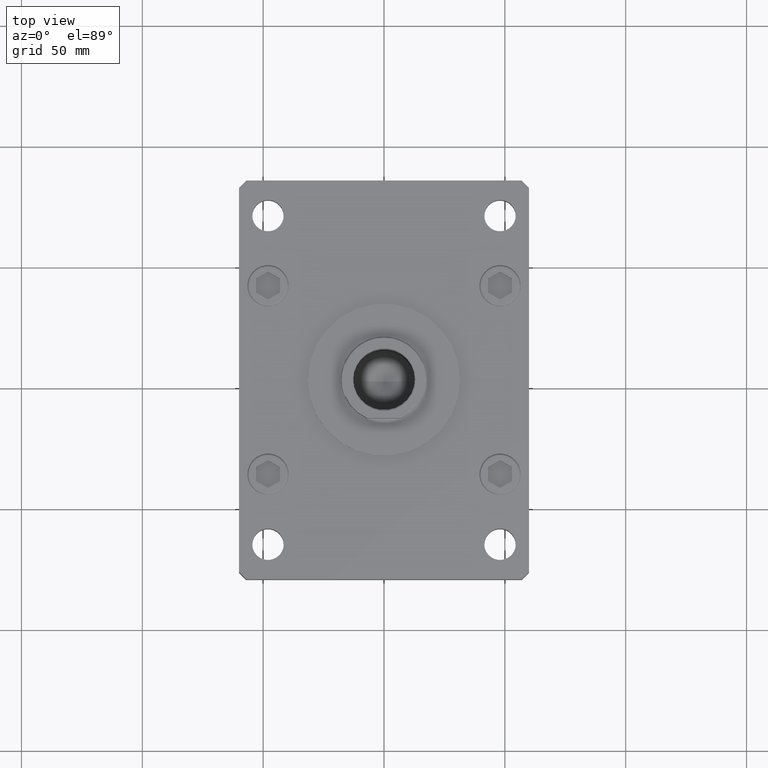
[diagram: clean part render]
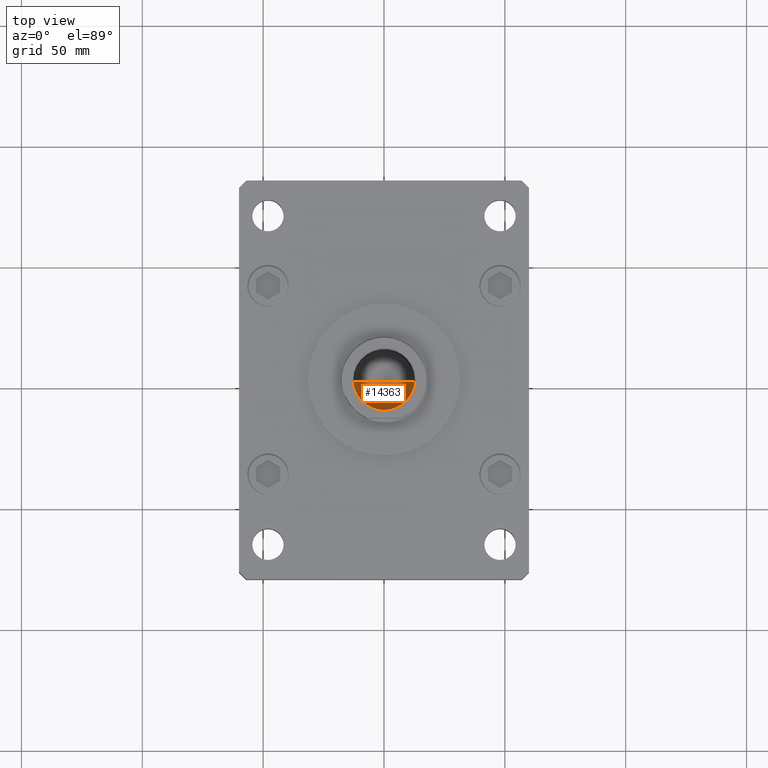
[diagram: same view with one face highlighted and labeled with its STEP entity id]
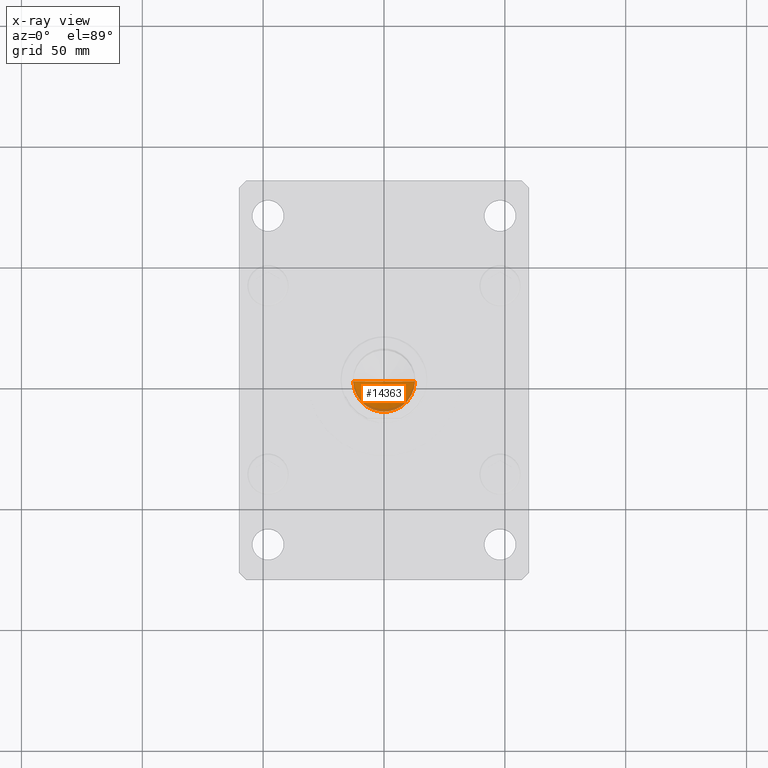
[diagram: x-ray of the same camera — body ghosted, the highlighted face saturated]
A machine part, top view. The second image highlights one B-rep face of the part: STEP entity #14363.
The next image is the same camera in x-ray: the body ghosted, the highlighted face saturated — about 8% of this face is hidden behind the body in this view.
In plain terms, the highlighted conical surface has half-angle 59 deg.
Its self-contained STEP definition (entity closure, byte-faithful):
#622 = VERTEX_POINT ( 'NONE', #44341 ) ;
#1254 = DIRECTION ( 'NONE',  ( 1.000000000000000000, 0.000000000000000000, 0.000000000000000000 ) ) ;
#1391 = CARTESIAN_POINT ( 'NONE',  ( -12.74999999999999112, 1.561424668912874125E-15, 144.2500000000000000 ) ) ;
#1718 = CARTESIAN_POINT ( 'NONE',  ( 12.74999999999999112, 0.000000000000000000, 144.2500000000000000 ) ) ;
#1941 = CARTESIAN_POINT ( 'NONE',  ( 0.000000000000000000, 0.000000000000000000, 144.2500000000000000 ) ) ;
#6846 = LINE ( 'NONE', #18836, #28539 ) ;
#7384 = DIRECTION ( 'NONE',  ( -0.8571673007021125557, 1.049727191138618942E-16, 0.5150380749100536004 ) ) ;
#10873 = VECTOR ( 'NONE', #18339, 1000.000000000000114 ) ;
#13273 = CARTESIAN_POINT ( 'NONE',  ( 0.000000000000000000, 0.000000000000000000, 144.2500000000000000 ) ) ;
#14363 = ADVANCED_FACE ( 'NONE', ( #30683 ), #40369, .F. ) ;
#14759 = DIRECTION ( 'NONE',  ( 1.000000000000000000, 0.000000000000000000, 0.000000000000000000 ) ) ;
#14983 = EDGE_CURVE ( 'NONE', #43043, #32850, #46480, .T. ) ;
#15071 = LINE ( 'NONE', #1718, #10873 ) ;
#17608 = EDGE_CURVE ( 'NONE', #622, #32850, #15071, .T. ) ;
#18074 = ORIENTED_EDGE ( 'NONE', *, *, #14983, .T. ) ;
#18339 = DIRECTION ( 'NONE',  ( 0.8571673007021125557, 0.000000000000000000, 0.5150380749100536004 ) ) ;
#18836 = CARTESIAN_POINT ( 'NONE',  ( -12.74999999999999112, 1.561424668912874125E-15, 144.2500000000000000 ) ) ;
#23976 = EDGE_LOOP ( 'NONE', ( #48097, #26878, #18074 ) ) ;
#26878 = ORIENTED_EDGE ( 'NONE', *, *, #45773, .T. ) ;
#28539 = VECTOR ( 'NONE', #7384, 1000.000000000000114 ) ;
#30565 = DIRECTION ( 'NONE',  ( -0.000000000000000000, -0.000000000000000000, 1.000000000000000000 ) ) ;
#30683 = FACE_OUTER_BOUND ( 'NONE', #23976, .T. ) ;
#32850 = VERTEX_POINT ( 'NONE', #51241 ) ;
#40369 = CONICAL_SURFACE ( 'NONE', #42129, 12.74999999999999112, 1.029744258676655200 ) ;
#42129 = AXIS2_PLACEMENT_3D ( 'NONE', #13273, #43225, #1254 ) ;
#43043 = VERTEX_POINT ( 'NONE', #1391 ) ;
#43225 = DIRECTION ( 'NONE',  ( -0.000000000000000000, -0.000000000000000000, 1.000000000000000000 ) ) ;
#44341 = CARTESIAN_POINT ( 'NONE',  ( -1.307202896762960287E-14, 0.000000000000000000, 136.5890271073986071 ) ) ;
#45773 = EDGE_CURVE ( 'NONE', #622, #43043, #6846, .T. ) ;
#46480 = CIRCLE ( 'NONE', #47323, 12.74999999999999112 ) ;
#47323 = AXIS2_PLACEMENT_3D ( 'NONE', #1941, #30565, #14759 ) ;
#48097 = ORIENTED_EDGE ( 'NONE', *, *, #17608, .F. ) ;
#51241 = CARTESIAN_POINT ( 'NONE',  ( 12.74999999999999112, 0.000000000000000000, 144.2500000000000000 ) ) ;